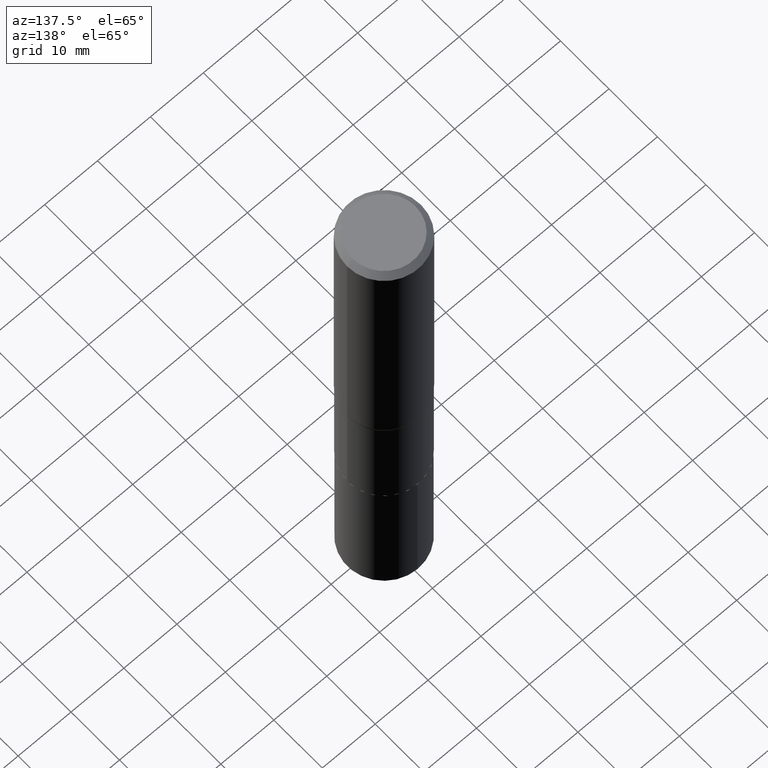
[diagram: clean part render]
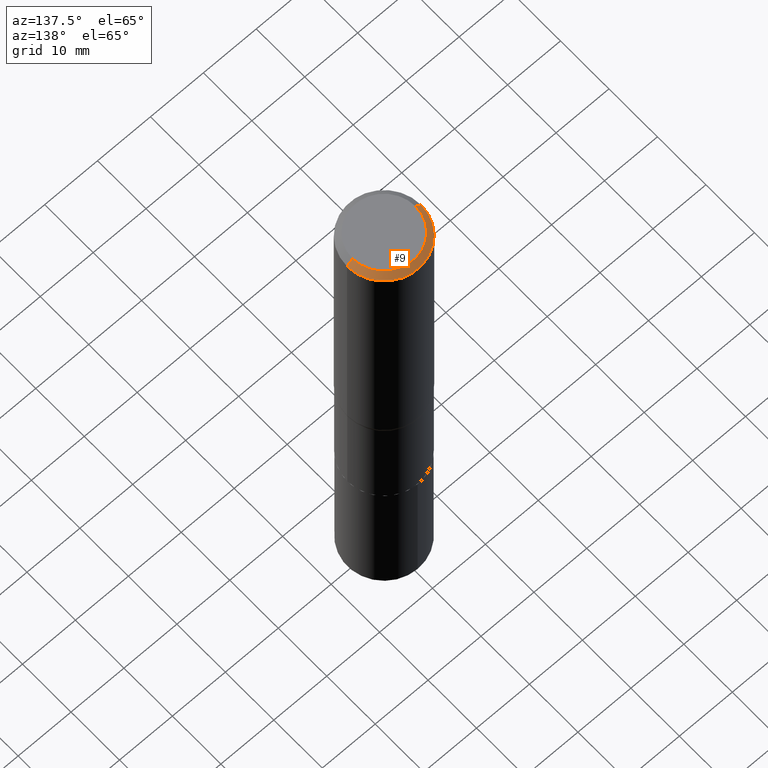
[diagram: same view with one face highlighted and labeled with its STEP entity id]
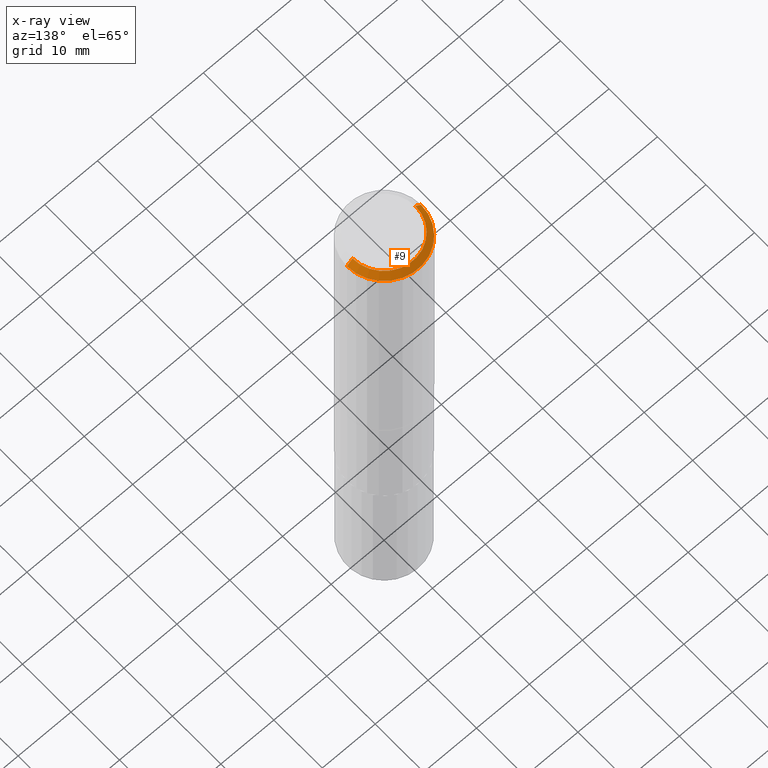
[diagram: x-ray of the same camera — body ghosted, the highlighted face saturated]
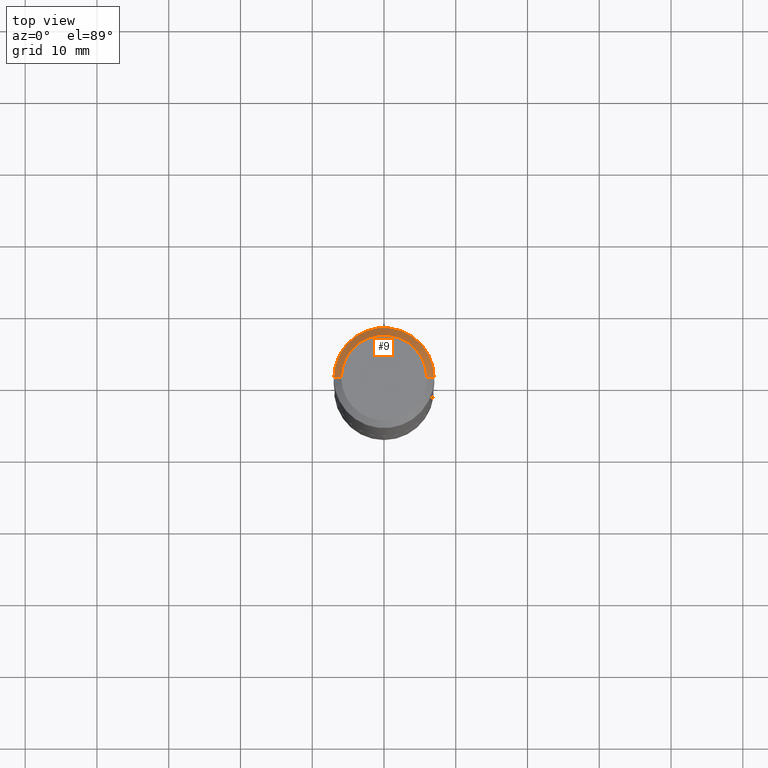
[diagram: same view with one face highlighted and labeled with its STEP entity id]
A machine part, auxiliary view. The second image highlights one B-rep face of the part: STEP entity #9.
The next image is the same camera in x-ray: the body ghosted, the highlighted face saturated — about 0% of this face is hidden behind the body in this view.
A second angle (top view) of the same face is appended — the face is thin or edge-on in the first view.
In plain terms, the highlighted conical surface has half-angle 45 deg.
Its self-contained STEP definition (entity closure, byte-faithful):
#9 = ADVANCED_FACE ( 'NONE', ( #313 ), #358, .T. ) ;
#24 = VERTEX_POINT ( 'NONE', #207 ) ;
#42 = CARTESIAN_POINT ( 'NONE',  ( -1.002970424325033577E-46, 1.431975951230896486E-32, 4.101342130344485961E-18 ) ) ;
#43 = VECTOR ( 'NONE', #201, 39.37007874015748143 ) ;
#67 = CARTESIAN_POINT ( 'NONE',  ( 1.010956804476941872E-30, -1.443378385477765316E-16, -0.04134000000000025848 ) ) ;
#91 = CARTESIAN_POINT ( 'NONE',  ( -0.2756000000000000116, 1.780166675422558965E-15, -0.04134000000000025848 ) ) ;
#92 = ORIENTED_EDGE ( 'NONE', *, *, #455, .F. ) ;
#96 = VECTOR ( 'NONE', #152, 39.37007874015748143 ) ;
#113 = DIRECTION ( 'NONE',  ( 1.000000000000000000, -6.982962677686267499E-15, 4.876157962347795834E-29 ) ) ;
#145 = DIRECTION ( 'NONE',  ( -2.445468806185136597E-29, 3.491481338843145583E-15, 1.000000000000000000 ) ) ;
#151 = AXIS2_PLACEMENT_3D ( 'NONE', #437, #299, #366 ) ;
#152 = DIRECTION ( 'NONE',  ( 0.7071067811865452413, -7.319954787623248157E-15, -0.7071067811865497932 ) ) ;
#154 = ORIENTED_EDGE ( 'NONE', *, *, #303, .T. ) ;
#157 = AXIS2_PLACEMENT_3D ( 'NONE', #67, #426, #322 ) ;
#165 = VERTEX_POINT ( 'NONE', #249 ) ;
#167 = VERTEX_POINT ( 'NONE', #389 ) ;
#184 = EDGE_CURVE ( 'NONE', #165, #312, #391, .T. ) ;
#201 = DIRECTION ( 'NONE',  ( -0.7071067811865452413, 2.468850131082233000E-15, -0.7071067811865497932 ) ) ;
#207 = CARTESIAN_POINT ( 'NONE',  ( 0.2756000000000000116, -2.068842352518111732E-15, -0.04134000000000025848 ) ) ;
#231 = ORIENTED_EDGE ( 'NONE', *, *, #184, .F. ) ;
#249 = CARTESIAN_POINT ( 'NONE',  ( 0.2342600000000000238, -1.821115673845785155E-15, 4.101342130356573868E-18 ) ) ;
#253 = AXIS2_PLACEMENT_3D ( 'NONE', #42, #145, #113 ) ;
#256 = CARTESIAN_POINT ( 'NONE',  ( -0.2342600000000000238, 1.707997756148671759E-15, 4.101342130332794026E-18 ) ) ;
#276 = LINE ( 'NONE', #91, #43 ) ;
#277 = EDGE_LOOP ( 'NONE', ( #231, #154, #459, #92 ) ) ;
#298 = EDGE_CURVE ( 'NONE', #24, #167, #441, .T. ) ;
#299 = DIRECTION ( 'NONE',  ( -2.445468806185136597E-29, 3.491481338843145583E-15, 1.000000000000000000 ) ) ;
#303 = EDGE_CURVE ( 'NONE', #165, #24, #324, .T. ) ;
#312 = VERTEX_POINT ( 'NONE', #256 ) ;
#313 = FACE_OUTER_BOUND ( 'NONE', #277, .T. ) ;
#322 = DIRECTION ( 'NONE',  ( -1.000000000000000000, 6.982962677686267499E-15, 0.000000000000000000 ) ) ;
#324 = LINE ( 'NONE', #365, #96 ) ;
#358 = CONICAL_SURFACE ( 'NONE', #157, 0.2756000000000000116, 0.7853981633974450594 ) ;
#365 = CARTESIAN_POINT ( 'NONE',  ( 0.2756000000000000116, -2.035091086733610886E-15, -0.04134000000000025848 ) ) ;
#366 = DIRECTION ( 'NONE',  ( 1.000000000000000000, -6.982962677686267499E-15, 0.000000000000000000 ) ) ;
#389 = CARTESIAN_POINT ( 'NONE',  ( -0.2756000000000000116, -1.566251129689780403E-15, -0.04134000000000025848 ) ) ;
#391 = CIRCLE ( 'NONE', #253, 0.2342600000000000238 ) ;
#426 = DIRECTION ( 'NONE',  ( 2.445468806185136597E-29, -3.491481338843145583E-15, -1.000000000000000000 ) ) ;
#437 = CARTESIAN_POINT ( 'NONE',  ( 1.010956804476941872E-30, -1.443378385477765316E-16, -0.04134000000000025848 ) ) ;
#441 = CIRCLE ( 'NONE', #151, 0.2756000000000000116 ) ;
#455 = EDGE_CURVE ( 'NONE', #312, #167, #276, .T. ) ;
#459 = ORIENTED_EDGE ( 'NONE', *, *, #298, .T. ) ;